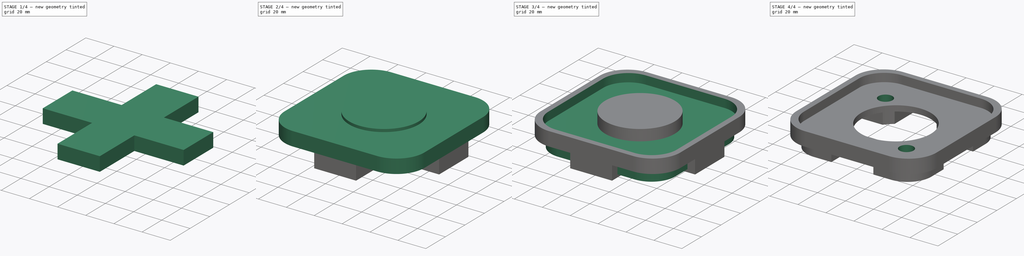
[diagram: build sequence overview — one tinted view per stage of 4, left to right]
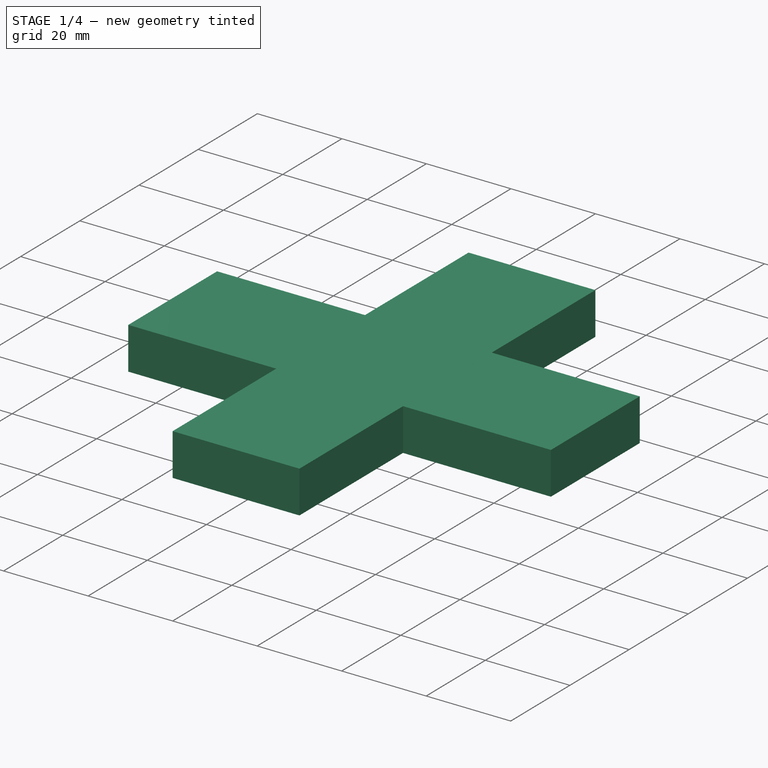
[diagram: stage 1 of 4 — iso view after this stage's code; geometry added in this stage tinted green]
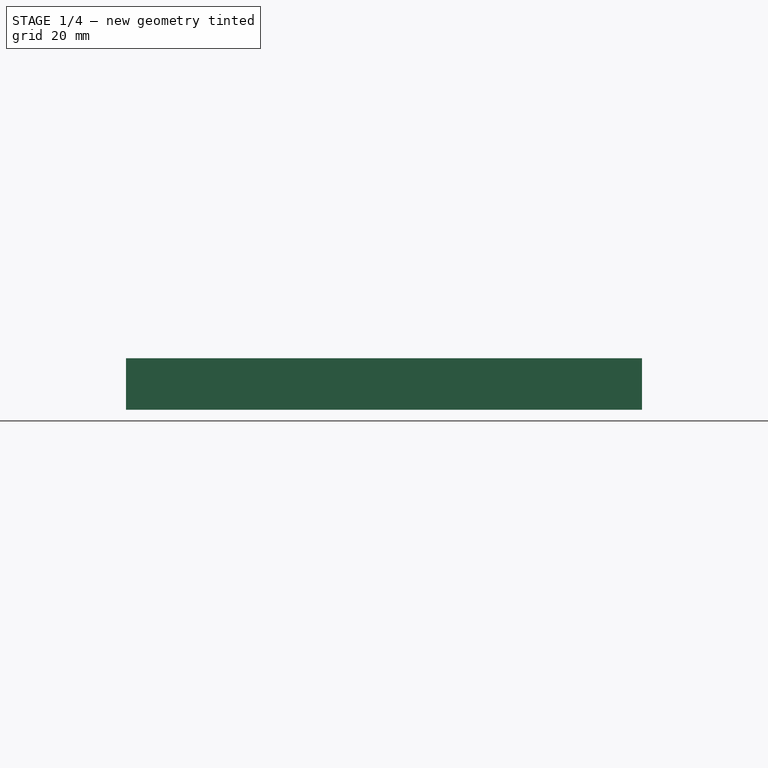
[diagram: stage 1 of 4 — front view after this stage's code; geometry added in this stage tinted green]
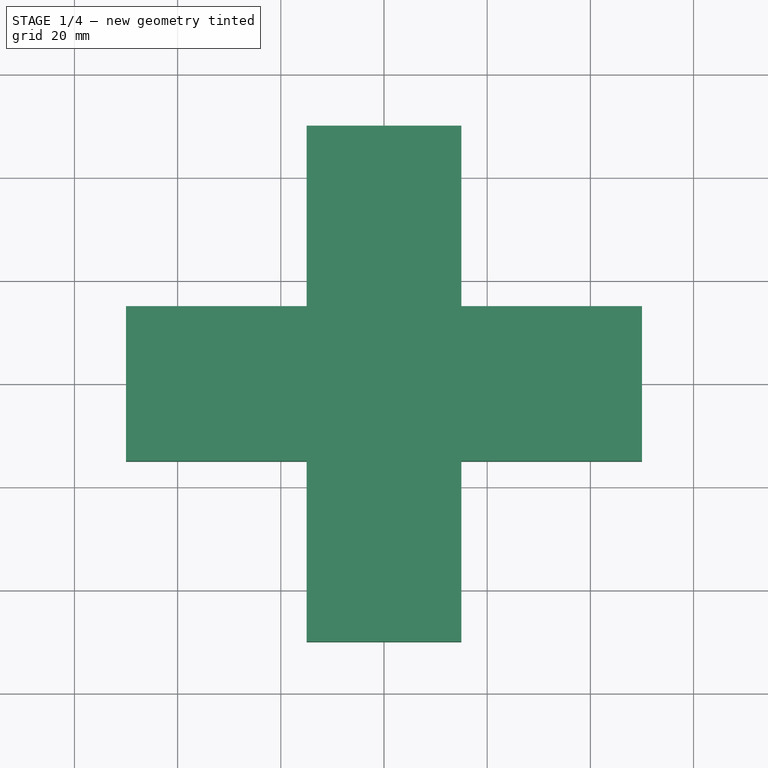
[diagram: stage 1 of 4 — top view after this stage's code; geometry added in this stage tinted green]
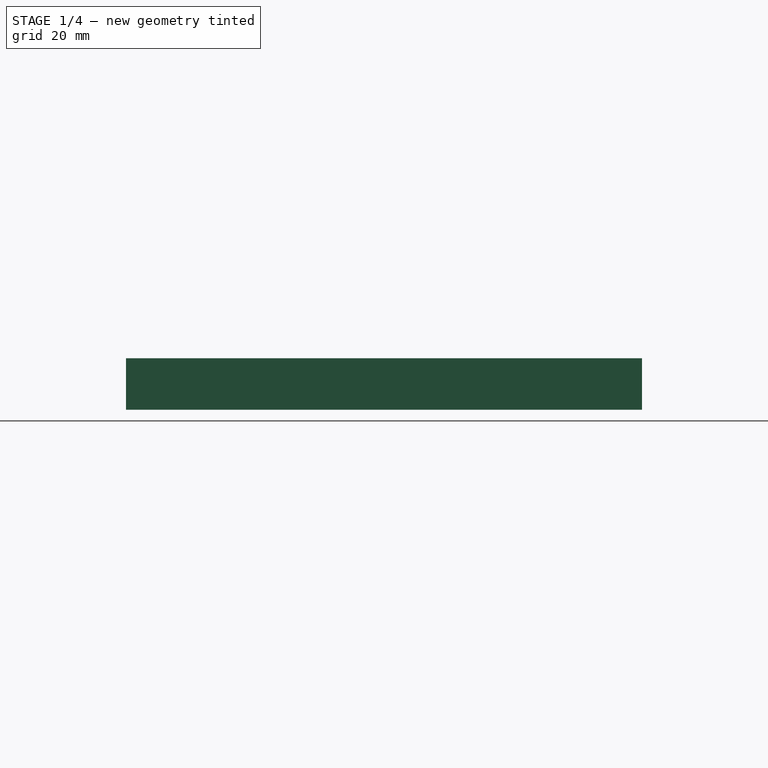
[diagram: stage 1 of 4 — right view after this stage's code; geometry added in this stage tinted green]
FCSTD DOCUMENT  (FreeCAD 0.18R16146 (Git))
Label: tapa
License: All rights reserved
LicenseURL: http://en.wikipedia.org/wiki/All_rights_reserved
objects: Sketcher::SketchObject×5, PartDesign::Pocket×3, PartDesign::Pad×2, Part::Box×2, Part::Cylinder×1, PartDesign::Body×1, Part::MultiFuse×1, Part::Cut×1
note: 21 computed .brp shape members not serialized (recipe doc carries the construction recipe); baked Part::Feature solids carry a one-line shape summary decoded from their .brp

FEATURE [PartDesign::Body] Body
  Group = -> [Sketch,Pad,Sketch001,Pad001,Pocket,Sketch002,Pocket001,Pocket002]
  Origin = -> Origin
  Tip = -> Pocket002
FEATURE [Part::Box] Box  label="Cubo"
  AttacherType = Attacher::AttachEngine3D
  Height = 10
  Length = 30
  Placement = pos=(-15,-50,-10) rot=(0,0,1;0rad)
  Width = 100
FEATURE [Part::Box] Box001  label="Cubo001"
  AttacherType = Attacher::AttachEngine3D
  Height = 10
  Length = 100
  Placement = pos=(-50,-15,-10) rot=(0,0,1;0rad)
  Width = 30
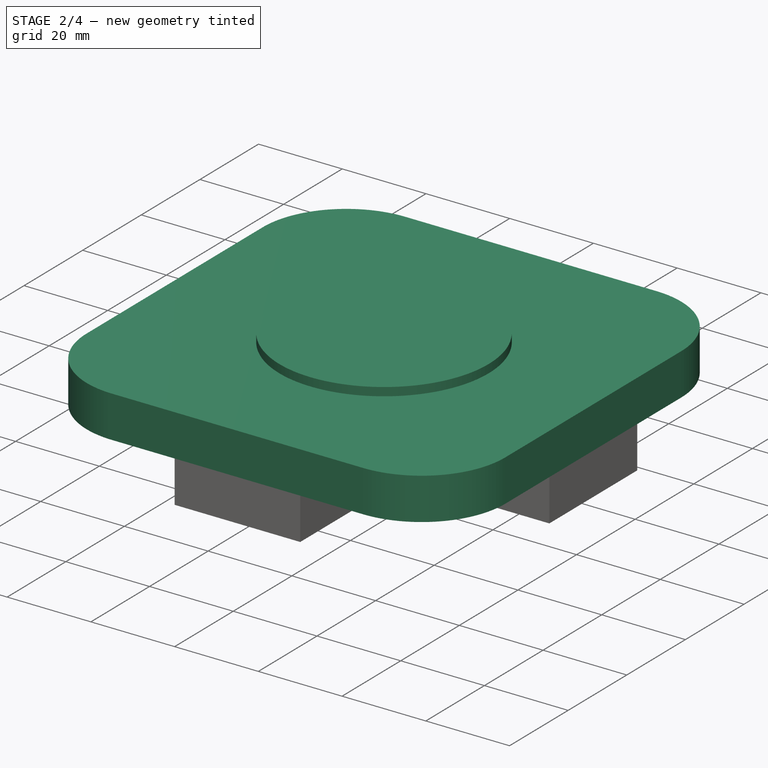
[diagram: stage 2 of 4 — iso view after this stage's code; geometry added in this stage tinted green]
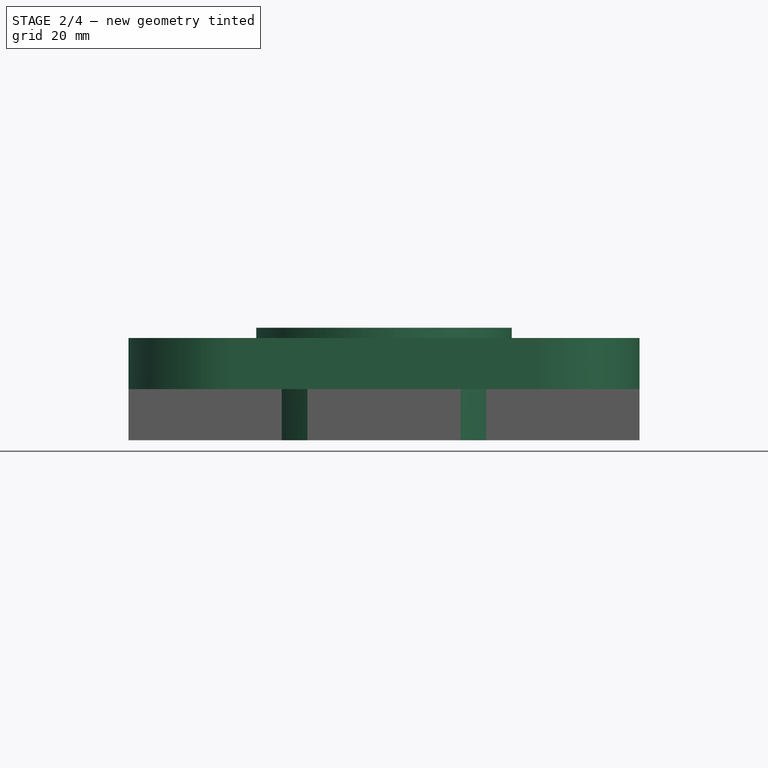
[diagram: stage 2 of 4 — front view after this stage's code; geometry added in this stage tinted green]
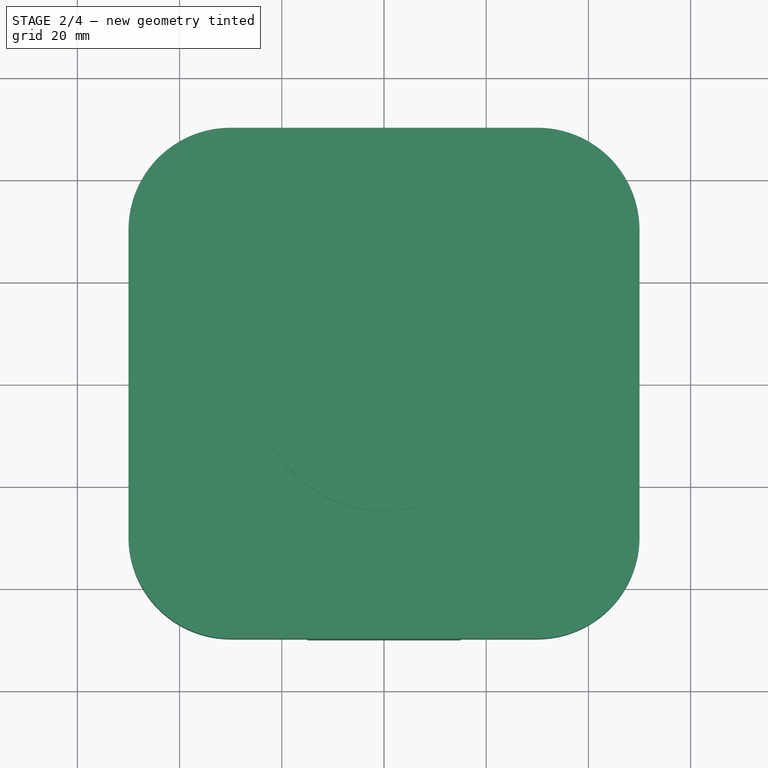
[diagram: stage 2 of 4 — top view after this stage's code; geometry added in this stage tinted green]
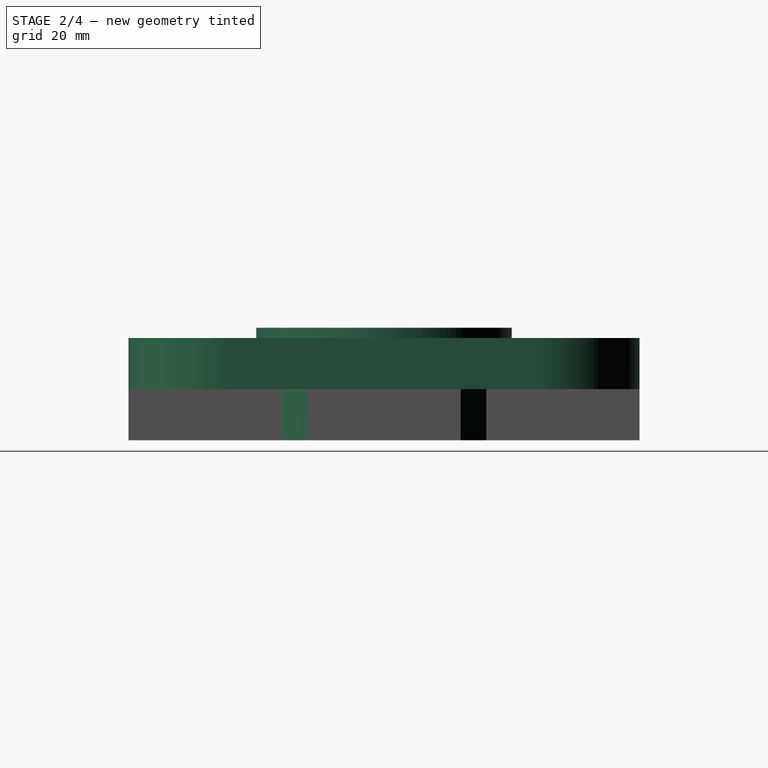
[diagram: stage 2 of 4 — right view after this stage's code; geometry added in this stage tinted green]
FEATURE [Sketcher::SketchObject] Sketch
  MapMode = 5
  Support = -> [XY_Plane]
  sketch-geometry (8):
    g0: LineSegment StartX=-30 StartY=50 StartZ=0 EndX=30 EndY=50 EndZ=0
    g1: LineSegment StartX=50 StartY=30 StartZ=0 EndX=50 EndY=-30 EndZ=0
    g2: LineSegment StartX=30 StartY=-50 StartZ=0 EndX=-30 EndY=-50 EndZ=0
    g3: LineSegment StartX=-50 StartY=-30 StartZ=0 EndX=-50 EndY=30 EndZ=0
    g4: ArcOfCircle CenterX=-30 CenterY=30 CenterZ=0 NormalX=0 NormalY=0 NormalZ=1 AngleXU=0 Radius=20 StartAngle=1.5708 EndAngle=3.14159
    g5: ArcOfCircle CenterX=30 CenterY=30 CenterZ=0 NormalX=0 NormalY=0 NormalZ=1 AngleXU=0 Radius=20 StartAngle=0 EndAngle=1.5708
    g6: ArcOfCircle CenterX=30 CenterY=-30 CenterZ=0 NormalX=0 NormalY=0 NormalZ=1 AngleXU=0 Radius=20 StartAngle=4.71239 EndAngle=6.28319
    g7: ArcOfCircle CenterX=-30 CenterY=-30 CenterZ=0 NormalX=0 NormalY=0 NormalZ=1 AngleXU=0 Radius=20 StartAngle=3.14159 EndAngle=4.71239
  constraints (18):
    c: Horizontal(g2)
    c: Vertical(g1)
    c: Tangent(g3,g4) = 1.5708
    c: Tangent(g0,g5) = 1.5708
    c: Tangent(g1,g5) = 1.5708
    c: Tangent(g1,g6) = 1.5708
    c: Tangent(g2,g6) = 1.5708
    c: Tangent(g2,g7) = 1.5708
    c: Tangent(g3,g7) = 1.5708
    c: Radius(g4) = 20
    c: Tangent(g4,g0) = 1.5708
    c: Radius(g5) = 20
    c: Radius(g6) = 20
    c: Radius(g7) = 20
    c: DistanceX(g0,g0) = 60
    c: DistanceY(g3,g3) = 60
    c: Symmetric(g0,g0,g-2)
    c: Symmetric(g3,g3,g-1)
FEATURE [PartDesign::Pad] Pad  label="Bloque"
  Length = 10
  Length2 = 100
  Profile = -> Sketch
  Type = 0
FEATURE [Part::Cylinder] Cylinder  label="Taladro central"
  Angle = 360
  AttacherType = Attacher::AttachEngine3D
  Height = 22
  Placement = pos=(0,0,-10) rot=(0,0,1;0rad)
  Radius = 25
FEATURE [Part::MultiFuse] Fusion
  Shapes = -> [Cylinder,Box,Box001]
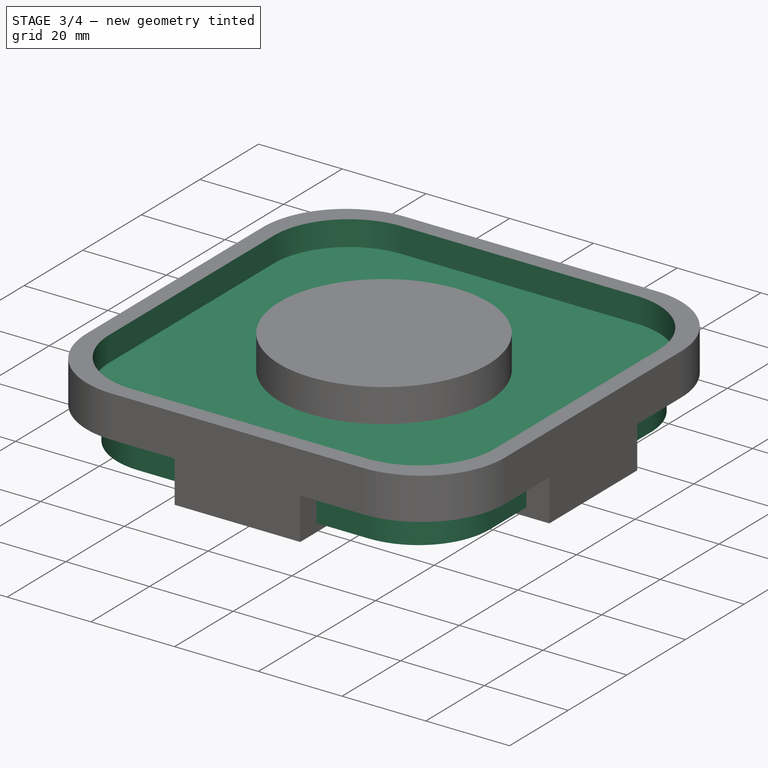
[diagram: stage 3 of 4 — iso view after this stage's code; geometry added in this stage tinted green]
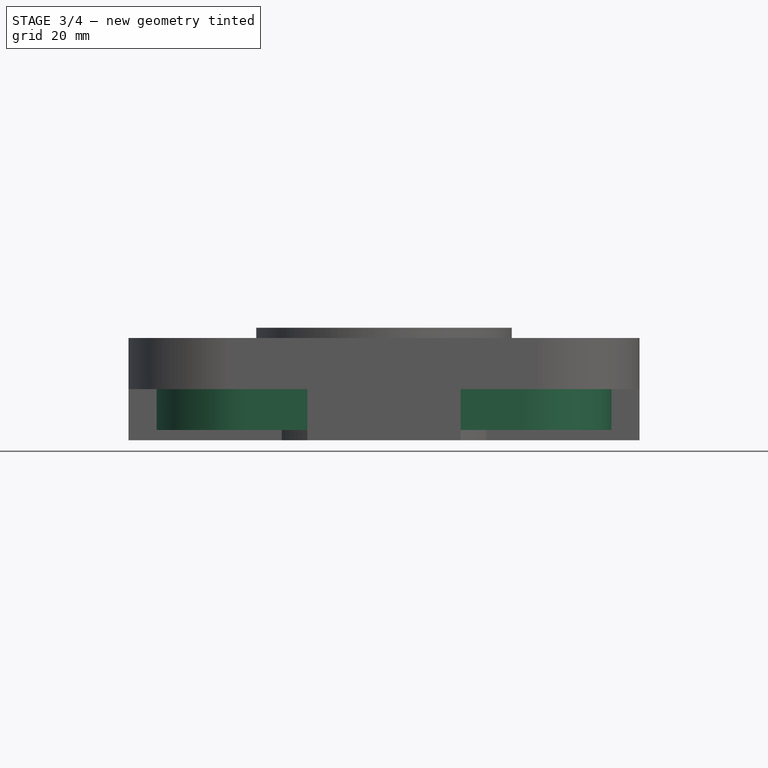
[diagram: stage 3 of 4 — front view after this stage's code; geometry added in this stage tinted green]
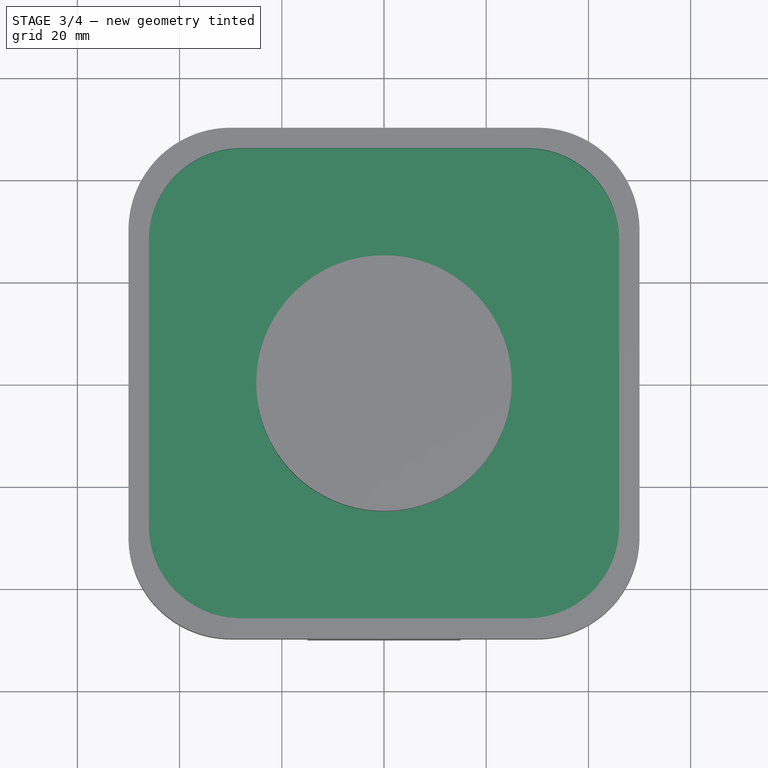
[diagram: stage 3 of 4 — top view after this stage's code; geometry added in this stage tinted green]
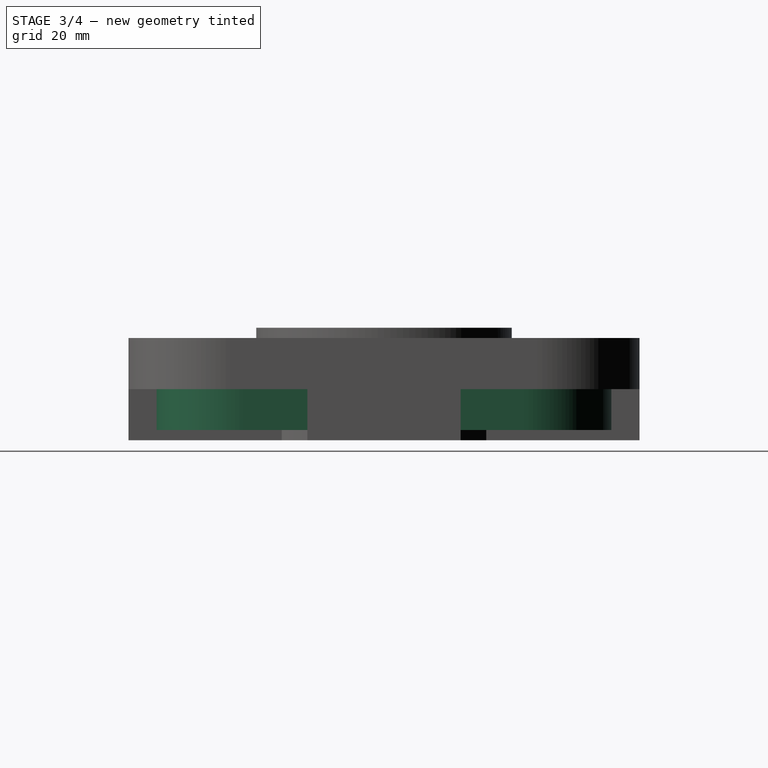
[diagram: stage 3 of 4 — right view after this stage's code; geometry added in this stage tinted green]
FEATURE [Sketcher::SketchObject] Sketch001
  MapMode = 5
  Placement = pos=(0,0,10) rot=(0,0,1;0rad)
  Support = -> [Pad]
  sketch-geometry (8):
    g0: LineSegment StartX=-27.5 StartY=44.5 StartZ=0 EndX=27.5 EndY=44.5 EndZ=0
    g1: LineSegment StartX=44.5 StartY=27.5 StartZ=0 EndX=44.5 EndY=-27.5 EndZ=0
    g2: LineSegment StartX=27.5 StartY=-44.5 StartZ=0 EndX=-27.5 EndY=-44.5 EndZ=0
    g3: LineSegment StartX=-44.5 StartY=-27.5 StartZ=0 EndX=-44.5 EndY=27.5 EndZ=0
    g4: ArcOfCircle CenterX=-27.5 CenterY=27.5 CenterZ=0 NormalX=0 NormalY=0 NormalZ=1 AngleXU=0 Radius=17 StartAngle=1.5708 EndAngle=3.14159
    g5: ArcOfCircle CenterX=27.5 CenterY=27.5 CenterZ=0 NormalX=0 NormalY=0 NormalZ=1 AngleXU=0 Radius=17 StartAngle=0 EndAngle=1.5708
    g6: ArcOfCircle CenterX=27.5 CenterY=-27.5 CenterZ=0 NormalX=0 NormalY=0 NormalZ=1 AngleXU=0 Radius=17 StartAngle=4.71239 EndAngle=6.28319
    g7: ArcOfCircle CenterX=-27.5 CenterY=-27.5 CenterZ=0 NormalX=0 NormalY=0 NormalZ=1 AngleXU=0 Radius=17 StartAngle=3.14159 EndAngle=4.71239
  constraints (18):
    c: Horizontal(g2)
    c: Vertical(g1)
    c: Radius(g4) = 17
    c: Radius(g5) = 17
    c: Radius(g6) = 17
    c: Radius(g7) = 17
    c: DistanceX(g0,g0) = 55
    c: Tangent(g3,g4) = 1.5708
    c: Tangent(g0,g4) = 1.5708
    c: Tangent(g0,g5) = 1.5708
    c: Tangent(g1,g5) = 1.5708
    c: Tangent(g2,g6) = 1.5708
    c: Tangent(g1,g6) = 1.5708
    c: Tangent(g2,g7) = 1.5708
    c: Tangent(g3,g7) = 1.5708
    c: DistanceY(g3,g3) = 55
    c: Symmetric(g3,g3,g-1)
    c: Symmetric(g0,g0,g-2)
FEATURE [PartDesign::Pad] Pad001
  BaseFeature = -> Pad
  Length = 18
  Length2 = 100
  Profile = -> Sketch001
  Reversed = true
  Type = 0
FEATURE [Sketcher::SketchObject] CopySketch003
  Placement = pos=(0,0,10) rot=(0,0,1;0rad)
  sketch-geometry (8):
    g0: LineSegment StartX=-28 StartY=46 StartZ=0 EndX=28 EndY=46 EndZ=0
    g1: LineSegment StartX=46 StartY=28 StartZ=0 EndX=46 EndY=-28 EndZ=0
    g2: LineSegment StartX=28 StartY=-46 StartZ=0 EndX=-28 EndY=-46 EndZ=0
    g3: LineSegment StartX=-46 StartY=-28 StartZ=0 EndX=-46 EndY=28 EndZ=0
    g4: ArcOfCircle CenterX=-28 CenterY=28 CenterZ=0 NormalX=0 NormalY=0 NormalZ=1 AngleXU=0 Radius=18 StartAngle=1.5708 EndAngle=3.14159
    g5: ArcOfCircle CenterX=28 CenterY=28 CenterZ=0 NormalX=0 NormalY=0 NormalZ=1 AngleXU=0 Radius=18 StartAngle=0 EndAngle=1.5708
    g6: ArcOfCircle CenterX=28 CenterY=-28 CenterZ=0 NormalX=0 NormalY=0 NormalZ=1 AngleXU=0 Radius=18 StartAngle=4.71239 EndAngle=6.28319
    g7: ArcOfCircle CenterX=-28 CenterY=-28 CenterZ=0 NormalX=0 NormalY=0 NormalZ=1 AngleXU=0 Radius=18 StartAngle=3.14159 EndAngle=4.71239
  constraints (18):
    c: Horizontal(g2)
    c: Vertical(g1)
    c: Radius(g4) = 18
    c: Radius(g5) = 18
    c: Radius(g6) = 18
    c: Radius(g7) = 18
    c: DistanceX(g0,g0) = 56
    c: Tangent(g3,g4) = 1.5708
    c: Tangent(g0,g4) = 1.5708
    c: Tangent(g0,g5) = 1.5708
    c: Tangent(g1,g5) = 1.5708
    c: Tangent(g2,g6) = 1.5708
    c: Tangent(g1,g6) = 1.5708
    c: Tangent(g2,g7) = 1.5708
    c: Tangent(g3,g7) = 1.5708
    c: DistanceY(g3,g3) = 56
    c: Symmetric(g3,g3,g-1)
    c: Symmetric(g0,g0,g-2)
FEATURE [PartDesign::Pocket] Pocket  label="Cajeado superior"
  BaseFeature = -> Pad001
  Length = 6
  Length2 = 100
  Profile = -> CopySketch003
  Type = 0
FEATURE [Sketcher::SketchObject] Sketch002
  MapMode = 5
  Placement = pos=(0,0,-8) rot=(1,0,0;3.14159rad)
  Support = -> [Pocket]
  sketch-geometry (14):
    g0: LineSegment StartX=-23.35 StartY=22.1421 StartZ=0 EndX=-21.7 EndY=25 EndZ=0
    g1: LineSegment StartX=-21.7 StartY=25 StartZ=0 EndX=-23.35 EndY=27.8579 EndZ=0
    g2: LineSegment StartX=-23.35 StartY=27.8579 StartZ=0 EndX=-26.65 EndY=27.8579 EndZ=0
    g3: LineSegment StartX=-26.65 StartY=27.8579 StartZ=0 EndX=-28.3 EndY=25 EndZ=0
    g4: LineSegment StartX=-28.3 StartY=25 StartZ=0 EndX=-26.65 EndY=22.1421 EndZ=0
    g5: LineSegment StartX=-26.65 StartY=22.1421 StartZ=0 EndX=-23.35 EndY=22.1421 EndZ=0
    g6: Circle [constr] CenterX=-25 CenterY=25 CenterZ=0 NormalX=0 NormalY=0 NormalZ=1 AngleXU=0 Radius=3.3
    g7: LineSegment StartX=28.3 StartY=-25 StartZ=0 EndX=26.65 EndY=-22.1421 EndZ=0
    g8: LineSegment StartX=26.65 StartY=-22.1421 StartZ=0 EndX=23.35 EndY=-22.1421 EndZ=0
    g9: LineSegment StartX=23.35 StartY=-22.1421 StartZ=0 EndX=21.7 EndY=-25 EndZ=0
    g10: LineSegment StartX=21.7 StartY=-25 StartZ=0 EndX=23.35 EndY=-27.8579 EndZ=0
    g11: LineSegment StartX=23.35 StartY=-27.8579 StartZ=0 EndX=26.65 EndY=-27.8579 EndZ=0
    g12: LineSegment StartX=26.65 StartY=-27.8579 StartZ=0 EndX=28.3 EndY=-25 EndZ=0
    g13: Circle [constr] CenterX=25 CenterY=-25 CenterZ=0 NormalX=0 NormalY=0 NormalZ=1 AngleXU=0 Radius=3.3
  constraints (34):
    c: Coincident(g0,g1)
    c: Coincident(g1,g2)
    c: Coincident(g2,g3)
    c: Coincident(g3,g4)
    c: Coincident(g4,g5)
    c: Coincident(g5,g0)
    c: Equal(g0, g1-g5) x5
    c: PointOnObject(g0,g6)
    c: PointOnObject(g1,g6)
    c: PointOnObject(g2,g6)
    c: PointOnObject(g3,g6)
    c: PointOnObject(g4,g6)
    c: PointOnObject(g5,g6)
    c: Radius(g6) = 3.3
    c: Horizontal(g2)
    c: DistanceY(g-1,g6) = 25
    c: Coincident(g7,g8)
    c: Coincident(g8,g9)
    c: Coincident(g9,g10)
    c: Coincident(g10,g11)
    c: Coincident(g11,g12)
    c: Coincident(g12,g7)
    c: Equal(g7, g8-g12) x5
    c: PointOnObject(g7,g13)
    c: PointOnObject(g8,g13)
    c: PointOnObject(g9,g13)
    c: PointOnObject(g10,g13)
    c: PointOnObject(g11,g13)
    c: PointOnObject(g12,g13)
    c: Horizontal(g8)
    c: DistanceY(g13,g-1) = 25
    c: Radius(g13) = 3.3
    c: DistanceX(g6,g-1) = 25
    c: DistanceX(g-1,g13) = 25
FEATURE [PartDesign::Pocket] Pocket001  label="Tuercas"
  BaseFeature = -> Pocket
  Length = 3
  Length2 = 100
  Profile = -> Sketch002
  Type = 0
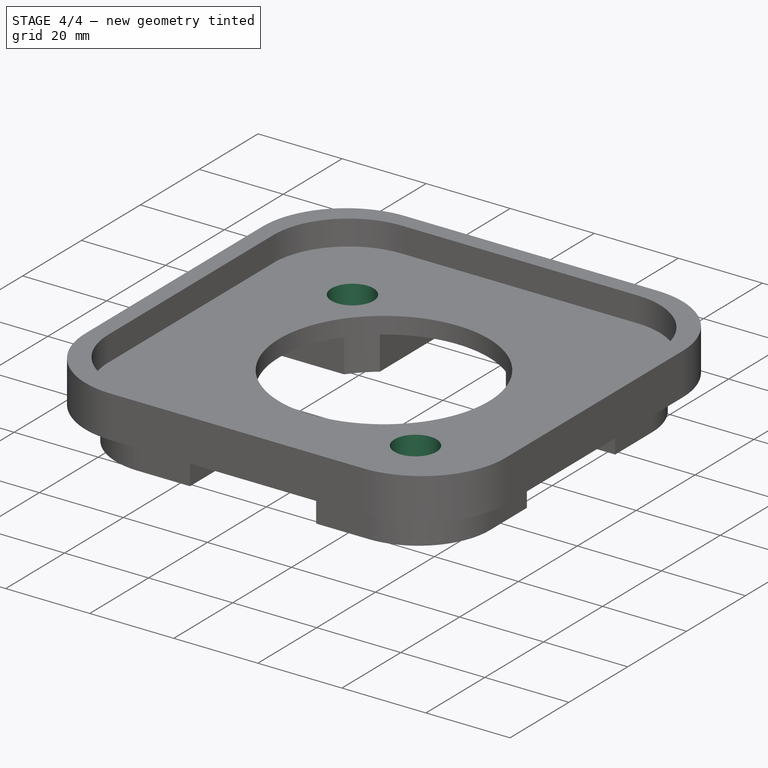
[diagram: stage 4 of 4 — iso view after this stage's code; geometry added in this stage tinted green]
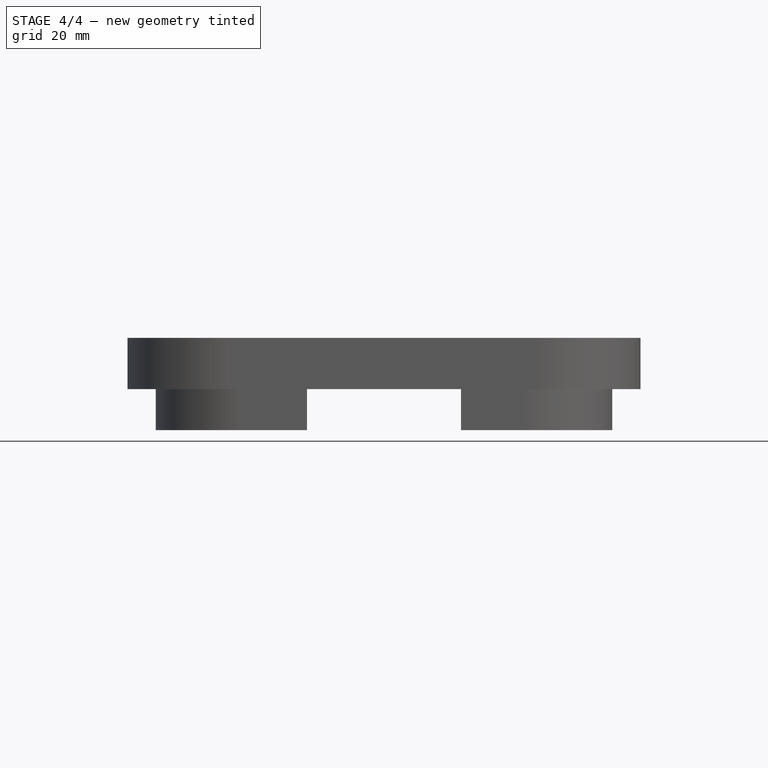
[diagram: stage 4 of 4 — front view after this stage's code; geometry added in this stage tinted green]
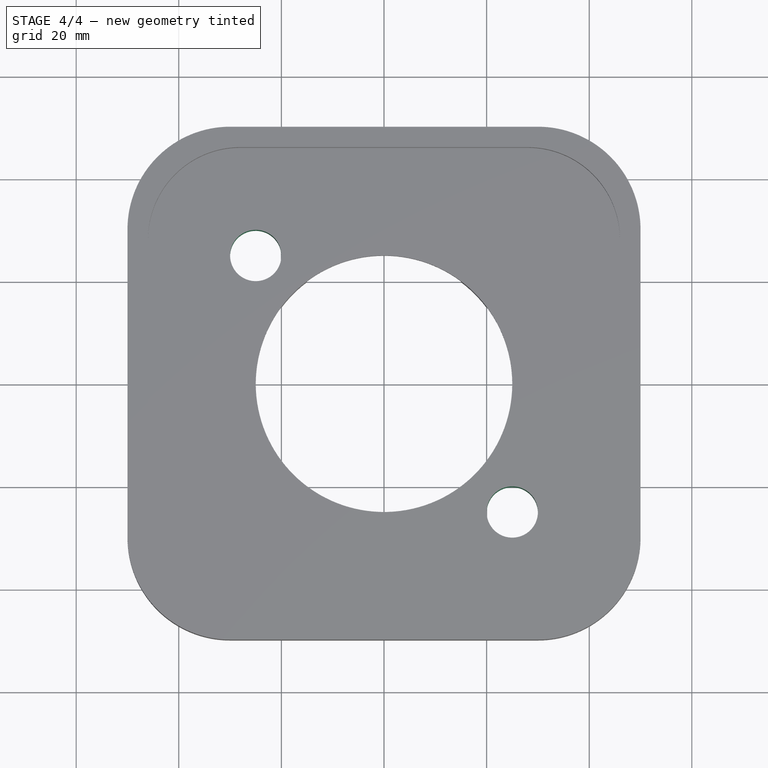
[diagram: stage 4 of 4 — top view after this stage's code; geometry added in this stage tinted green]
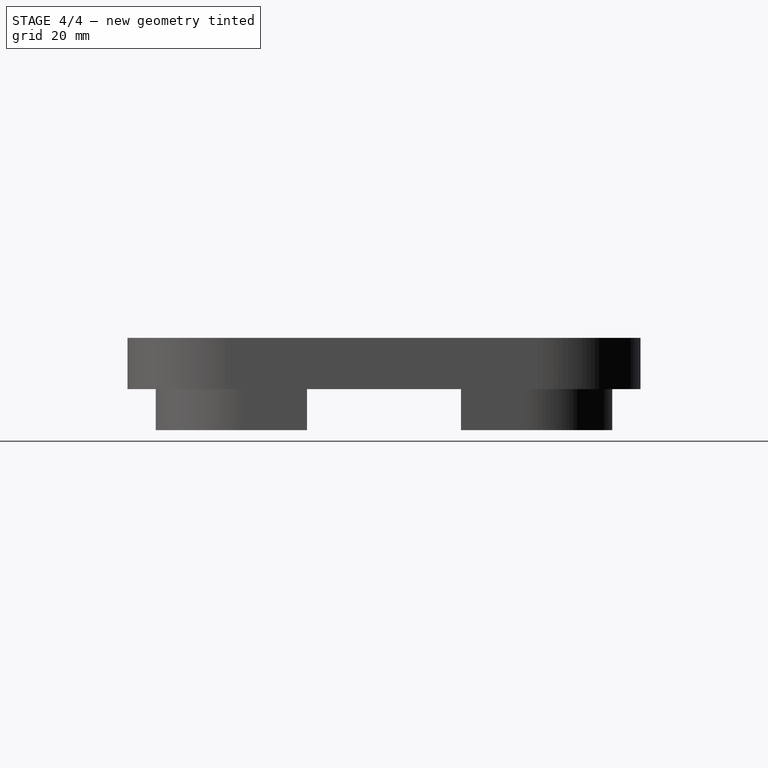
[diagram: stage 4 of 4 — right view after this stage's code; geometry added in this stage tinted green]
FEATURE [Sketcher::SketchObject] CopySketch005
  Placement = pos=(0,0,-8) rot=(1,0,0;3.14159rad)
  sketch-geometry (2):
    g0: Circle CenterX=25 CenterY=25 CenterZ=0 NormalX=0 NormalY=0 NormalZ=1 AngleXU=0 Radius=5
    g1: Circle CenterX=-25 CenterY=-25 CenterZ=0 NormalX=0 NormalY=0 NormalZ=1 AngleXU=0 Radius=5
  constraints (6):
    c: DistanceX(g1,g-1) = 25
    c: DistanceY(g1,g-1) = 25
    c: DistanceX(g-1,g0) = 25
    c: DistanceY(g-1,g0) = 25
    c: Radius(g0) = 5
    c: Radius(g1) = 5
FEATURE [PartDesign::Pocket] Pocket002  label="Taladro botón"
  BaseFeature = -> Pocket001
  Length = 5
  Length2 = 100
  Profile = -> CopySketch005
  Type = 1
FEATURE [Part::Cut] Cut
  Base = -> Body
  Tool = -> Fusion
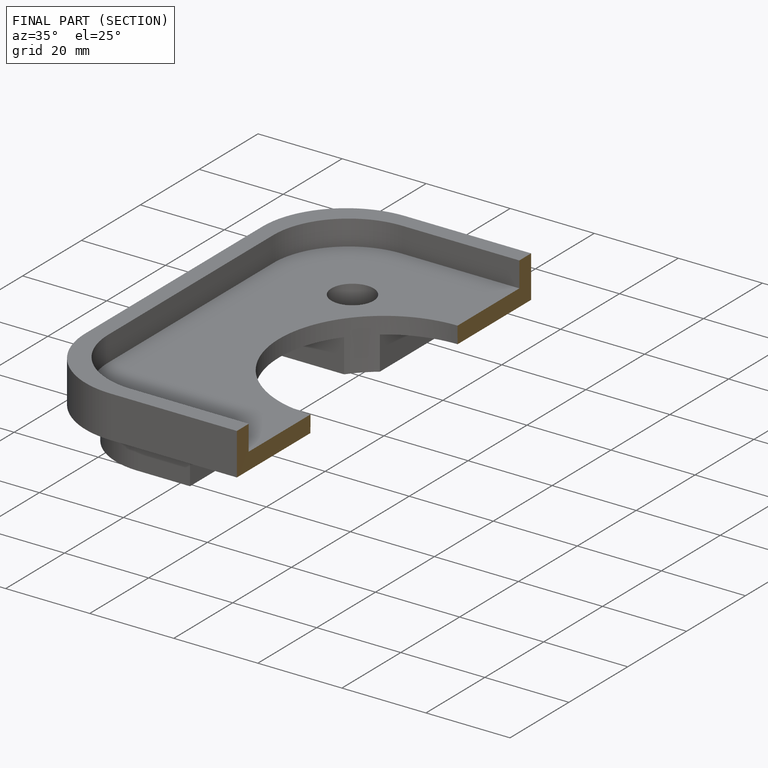
[diagram: finished part — half-section view (interior)]
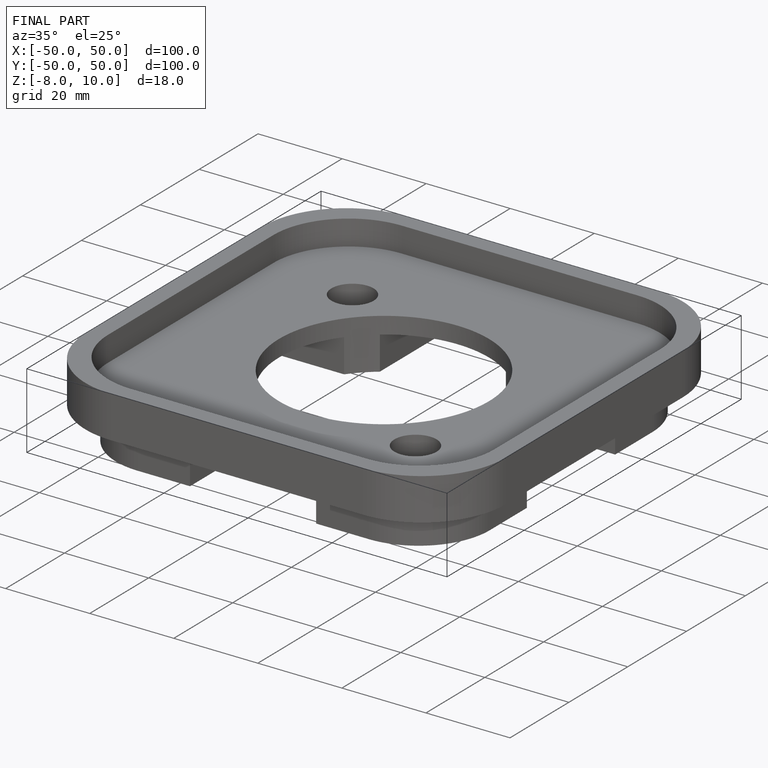
[diagram: finished part — iso view with bounding-box wireframe]
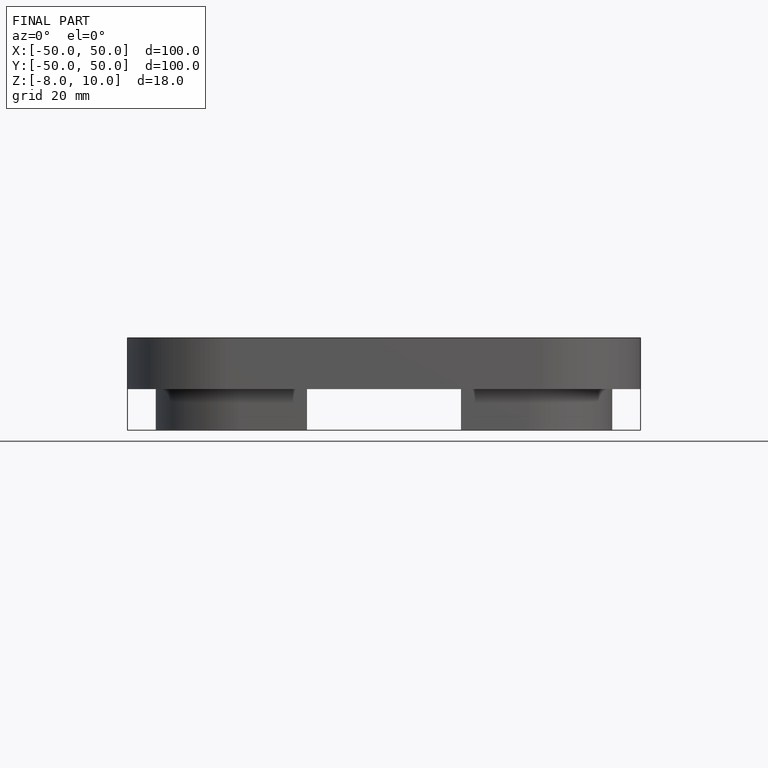
[diagram: finished part — front view with bounding-box wireframe]
